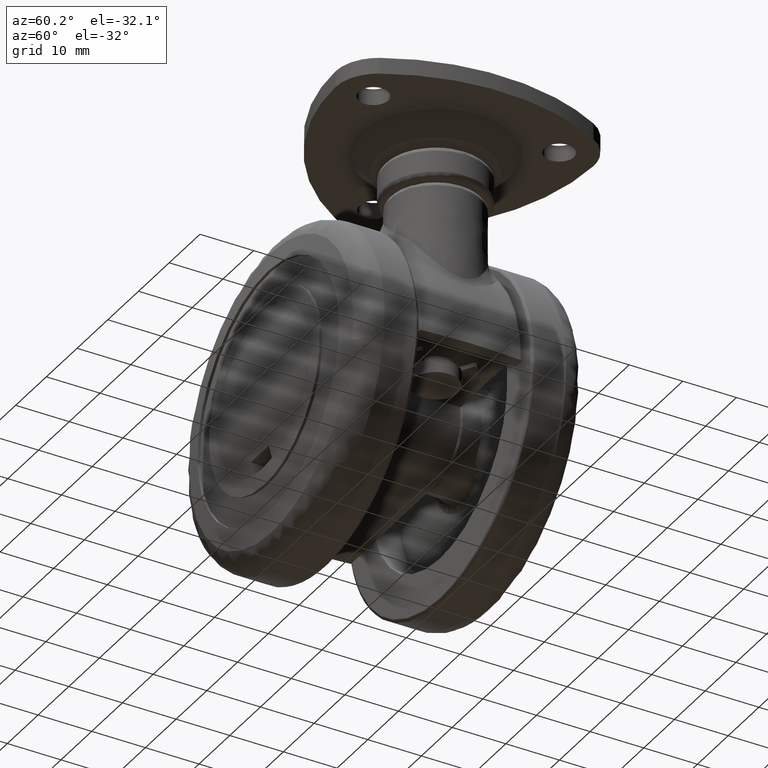
[diagram: clean part render]
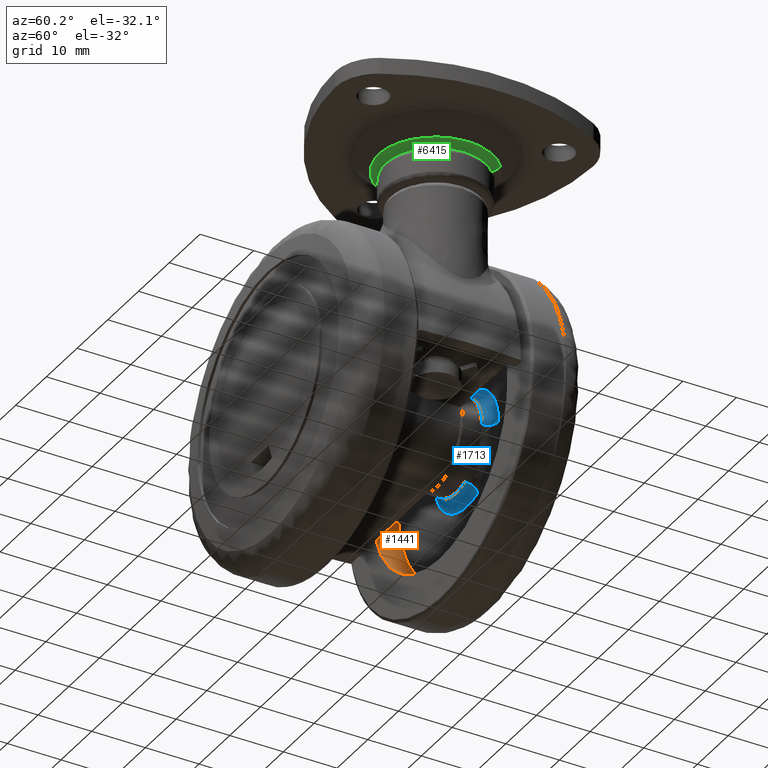
[diagram: same view with three faces highlighted in distinct colors, each labeled with its STEP entity id]
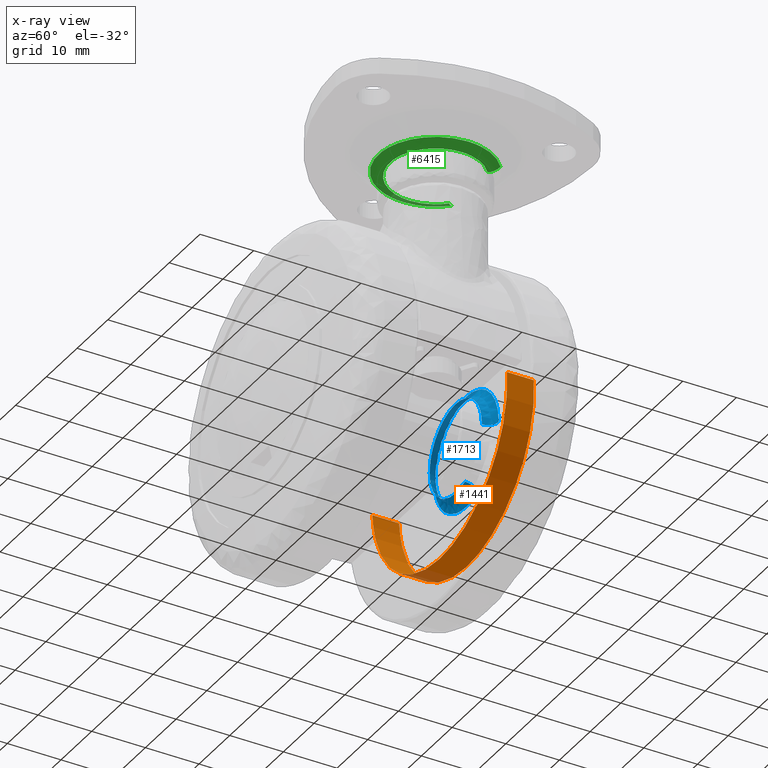
[diagram: x-ray of the same camera — body ghosted, the three highlighted faces saturated]
A machine part, auxiliary view with three faces highlighted in distinct colors.
The next image is the same camera in x-ray (body ghosted, the three faces saturated) — at least one of them is partly hidden behind the body in this view.
Their STEP definitions:

[orange] entity #1441 — the highlighted face is a freeform B-spline surface patch.
#1280=CARTESIAN_POINT('',(21.932181719847271,15.499999999999959,1.726095306631135));
#1281=VERTEX_POINT('',#1280);
#1295=CARTESIAN_POINT('',(21.932181715301869,10.500000000000000,1.726095364386155));
#1296=VERTEX_POINT('',#1295);
#1297=CARTESIAN_POINT('',(21.932181719847271,15.499999999999959,1.726095306631135));
#1298=CARTESIAN_POINT('',(21.932181715301869,10.500000000000000,1.726095364386155));
#1299=QUASI_UNIFORM_CURVE('',1,(#1297,#1298),.UNSPECIFIED.,.F.,.U.);
#1300=EDGE_CURVE('',#1281,#1296,#1299,.T.);
#1317=CARTESIAN_POINT('',(-21.932181715301869,10.500000000000000,-1.726095364386156));
#1318=VERTEX_POINT('',#1317);
#1334=CARTESIAN_POINT('',(-21.932181719847261,15.499999999999959,-1.726095306631136));
#1335=VERTEX_POINT('',#1334);
#1336=CARTESIAN_POINT('',(-21.932181719847261,15.499999999999959,-1.726095306631136));
#1337=CARTESIAN_POINT('',(-21.932181715301869,10.500000000000000,-1.726095364386156));
#1338=QUASI_UNIFORM_CURVE('',1,(#1336,#1337),.UNSPECIFIED.,.F.,.U.);
#1339=EDGE_CURVE('',#1335,#1318,#1338,.T.);
#1359=CARTESIAN_POINT('',(-21.932181342128811,15.625000000000011,-1.726100106012602));
#1360=CARTESIAN_POINT('',(-20.206081236116209,15.625000000000020,-23.658281448141402));
#1361=CARTESIAN_POINT('',(1.726100106012602,15.625000000000020,-21.932181342128811));
#1362=CARTESIAN_POINT('',(23.658281448141402,15.625000000000020,-20.206081236116209));
#1363=CARTESIAN_POINT('',(21.932181342128811,15.625000000000011,1.726100106012602));
#1364=CARTESIAN_POINT('',(-21.932181342128811,10.371874999999990,-1.726100106012604));
#1365=CARTESIAN_POINT('',(-20.206081236116209,10.371875000000001,-23.658281448141416));
#1366=CARTESIAN_POINT('',(1.726100106012602,10.371874999999999,-21.932181342128811));
#1367=CARTESIAN_POINT('',(23.658281448141402,10.371875000000001,-20.206081236116209));
#1368=CARTESIAN_POINT('',(21.932181342128811,10.371874999999990,1.726100106012600));
#1376=(BOUNDED_SURFACE()B_SPLINE_SURFACE(2,1,((#1359,#1364),(#1360,#1365),(#1361,#1366),(#1362,#1367),(#1363,#1368)),.UNSPECIFIED.,.F.,.F.,.U.)B_SPLINE_SURFACE_WITH_KNOTS((3,2,3),(2,2),(0.0,36.450793488832360,72.901586977664721),(0.0,5.253125000000019),.UNSPECIFIED.)GEOMETRIC_REPRESENTATION_ITEM()RATIONAL_B_SPLINE_SURFACE(((1.0,1.0),(0.707106781186548,0.707106781186548),(1.0,1.0),(0.707106781186548,0.707106781186548),(1.0,1.0)))REPRESENTATION_ITEM('')SURFACE());
#1377=CARTESIAN_POINT('',(0.0,15.500000000000000,-21.999999999999989));
#1378=VERTEX_POINT('',#1377);
#1379=CARTESIAN_POINT('',(21.932181719847271,15.499999999999961,1.726095306631135));
#1380=CARTESIAN_POINT('',(21.999999999999996,15.500000000000002,0.864379943341853));
#1381=CARTESIAN_POINT('',(22.0,15.500000000000000,5.694420E-015));
#1382=CARTESIAN_POINT('',(22.000000000000007,15.500000000000004,-21.999999999999989));
#1383=CARTESIAN_POINT('',(0.0,15.500000000000000,-21.999999999999989));
#1391=(BOUNDED_CURVE()B_SPLINE_CURVE(2,(#1379,#1380,#1381,#1382,#1383),.UNSPECIFIED.,.F.,.U.)B_SPLINE_CURVE_WITH_KNOTS((3,2,3),(0.236331338145294,0.250000000000000,0.500000000000000),.UNSPECIFIED.)CURVE()GEOMETRIC_REPRESENTATION_ITEM()RATIONAL_B_SPLINE_CURVE((0.969723434457610,0.983986166530010,1.0,0.707106781186548,1.0))REPRESENTATION_ITEM(''));
#1392=EDGE_CURVE('',#1281,#1378,#1391,.T.);
#1393=ORIENTED_EDGE('',*,*,#1392,.T.);
#1394=CARTESIAN_POINT('',(0.0,15.500000000000000,-21.999999999999989));
#1395=CARTESIAN_POINT('',(-20.336595280463019,15.499999999999998,-21.999999999999989));
#1396=CARTESIAN_POINT('',(-21.932181719847264,15.499999999999964,-1.726095306631136));
#1404=(BOUNDED_CURVE()B_SPLINE_CURVE(2,(#1394,#1395,#1396),.UNSPECIFIED.,.F.,.U.)B_SPLINE_CURVE_WITH_KNOTS((3,3),(0.500000000000000,0.736331338145294),.UNSPECIFIED.)CURVE()GEOMETRIC_REPRESENTATION_ITEM()RATIONAL_B_SPLINE_CURVE((1.0,0.723120614656538,0.969723434457610))REPRESENTATION_ITEM(''));
#1405=EDGE_CURVE('',#1378,#1335,#1404,.T.);
#1406=ORIENTED_EDGE('',*,*,#1405,.T.);
#1407=ORIENTED_EDGE('',*,*,#1339,.T.);
#1408=CARTESIAN_POINT('',(0.0,10.500000000000000,-22.0));
#1409=VERTEX_POINT('',#1408);
#1410=CARTESIAN_POINT('',(0.0,10.500000000000000,-22.0));
#1411=CARTESIAN_POINT('',(-20.336595226744148,10.499999999999998,-21.999999999999989));
#1412=CARTESIAN_POINT('',(-21.932181715301869,10.499999999999998,-1.726095364386157));
#1420=(BOUNDED_CURVE()B_SPLINE_CURVE(2,(#1410,#1411,#1412),.UNSPECIFIED.,.F.,.U.)B_SPLINE_CURVE_WITH_KNOTS((3,3),(0.500000000000000,0.736331337693874),.UNSPECIFIED.)CURVE()GEOMETRIC_REPRESENTATION_ITEM()RATIONAL_B_SPLINE_CURVE((1.0,0.723120615185409,0.969723433515531))REPRESENTATION_ITEM(''));
#1421=EDGE_CURVE('',#1409,#1318,#1420,.T.);
#1422=ORIENTED_EDGE('',*,*,#1421,.F.);
#1423=CARTESIAN_POINT('',(21.932181715301876,10.499999999999996,1.726095364386155));
#1424=CARTESIAN_POINT('',(22.0,10.500000000000000,0.864379972353372));
#1425=CARTESIAN_POINT('',(22.0,10.500000000000000,3.857510E-015));
#1426=CARTESIAN_POINT('',(22.000000000000007,10.500000000000002,-21.999999999999989));
#1427=CARTESIAN_POINT('',(0.0,10.500000000000000,-22.0));
#1435=(BOUNDED_CURVE()B_SPLINE_CURVE(2,(#1423,#1424,#1425,#1426,#1427),.UNSPECIFIED.,.F.,.U.)B_SPLINE_CURVE_WITH_KNOTS((3,2,3),(0.236331337693874,0.250000000000000,0.500000000000000),.UNSPECIFIED.)CURVE()GEOMETRIC_REPRESENTATION_ITEM()RATIONAL_B_SPLINE_CURVE((0.969723433515531,0.983986166001138,1.0,0.707106781186548,1.0))REPRESENTATION_ITEM(''));
#1436=EDGE_CURVE('',#1296,#1409,#1435,.T.);
#1437=ORIENTED_EDGE('',*,*,#1436,.F.);
#1438=ORIENTED_EDGE('',*,*,#1300,.F.);
#1439=EDGE_LOOP('',(#1393,#1406,#1407,#1422,#1437,#1438));
#1440=FACE_OUTER_BOUND('',#1439,.T.);
#1441=ADVANCED_FACE('',(#1440),#1376,.F.);

[blue] entity #1713 — the highlighted face is a freeform B-spline surface patch.
#1044=CARTESIAN_POINT('',(0.0,13.500000000000000,-8.499999999999995));
#1045=VERTEX_POINT('',#1044);
#1046=CARTESIAN_POINT('',(-6.155301993841409,13.500000000000030,-5.861932903455232));
#1047=VERTEX_POINT('',#1046);
#1048=CARTESIAN_POINT('',(0.0,13.500000000000000,-8.499999999999995));
#1049=CARTESIAN_POINT('',(-3.642968885092640,13.500000000000007,-8.499999999999995));
#1050=CARTESIAN_POINT('',(-6.155301993841409,13.500000000000034,-5.861932903455232));
#1058=(BOUNDED_CURVE()B_SPLINE_CURVE(2,(#1048,#1049,#1050),.UNSPECIFIED.,.F.,.U.)B_SPLINE_CURVE_WITH_KNOTS((3,3),(0.0,0.128683008523415),.UNSPECIFIED.)CURVE()GEOMETRIC_REPRESENTATION_ITEM()RATIONAL_B_SPLINE_CURVE((1.0,0.849238477707912,0.853680525480750))REPRESENTATION_ITEM(''));
#1059=EDGE_CURVE('',#1045,#1047,#1058,.T.);
#1061=CARTESIAN_POINT('',(3.003066716635998,13.500000000583579,-7.951829367851963));
#1062=VERTEX_POINT('',#1061);
#1063=CARTESIAN_POINT('',(3.003066716635998,13.500000000583572,-7.951829367851965));
#1064=CARTESIAN_POINT('',(1.551564055333215,13.500000000000004,-8.499999999999995));
#1065=CARTESIAN_POINT('',(0.0,13.500000000000000,-8.499999999999995));
#1073=(BOUNDED_CURVE()B_SPLINE_CURVE(2,(#1063,#1064,#1065),.UNSPECIFIED.,.F.,.U.)B_SPLINE_CURVE_WITH_KNOTS((3,3),(0.939999999999001,1.0),.UNSPECIFIED.)CURVE()GEOMETRIC_REPRESENTATION_ITEM()RATIONAL_B_SPLINE_CURVE((0.893152553775636,0.929705627483601,1.0))REPRESENTATION_ITEM(''));
#1074=EDGE_CURVE('',#1062,#1045,#1073,.T.);
#1076=CARTESIAN_POINT('',(8.500000000000000,13.500000000607830,5.399091E-015));
#1077=VERTEX_POINT('',#1076);
#1091=CARTESIAN_POINT('',(0.0,13.500000000000000,8.500000000000005));
#1092=VERTEX_POINT('',#1091);
#1093=CARTESIAN_POINT('',(0.0,13.500000000000000,8.500000000000005));
#1094=CARTESIAN_POINT('',(8.499999999999957,13.500000000000002,8.500000000000005));
#1095=CARTESIAN_POINT('',(8.500000000000000,13.500000000607827,5.399091E-015));
#1103=(BOUNDED_CURVE()B_SPLINE_CURVE(2,(#1093,#1094,#1095),.UNSPECIFIED.,.F.,.U.)B_SPLINE_CURVE_WITH_KNOTS((3,3),(0.500000000000000,0.749999999999999),.UNSPECIFIED.)CURVE()GEOMETRIC_REPRESENTATION_ITEM()RATIONAL_B_SPLINE_CURVE((1.0,0.707106781186549,0.999999999999998))REPRESENTATION_ITEM(''));
#1104=EDGE_CURVE('',#1092,#1077,#1103,.T.);
#1106=CARTESIAN_POINT('',(-8.499676346044968,13.500000000000000,-0.074175551792033));
#1107=VERTEX_POINT('',#1106);
#1108=CARTESIAN_POINT('',(-8.499676346044968,13.499999999999998,-0.074175551792033));
#1109=CARTESIAN_POINT('',(-8.500000000000000,13.500000000000002,-0.037088482031816));
#1110=CARTESIAN_POINT('',(-8.500000000000000,13.500000000000000,4.959656E-015));
#1111=CARTESIAN_POINT('',(-8.500000000000002,13.500000000000000,8.500000000000005));
#1112=CARTESIAN_POINT('',(0.0,13.500000000000000,8.500000000000005));
#1120=(BOUNDED_CURVE()B_SPLINE_CURVE(2,(#1108,#1109,#1110,#1111,#1112),.UNSPECIFIED.,.F.,.U.)B_SPLINE_CURVE_WITH_KNOTS((3,2,3),(0.248460105662698,0.250000000000000,0.500000000000000),.UNSPECIFIED.)CURVE()GEOMETRIC_REPRESENTATION_ITEM()RATIONAL_B_SPLINE_CURVE((0.996414028095048,0.998195901563660,1.0,0.707106781186548,1.0))REPRESENTATION_ITEM(''));
#1121=EDGE_CURVE('',#1107,#1092,#1120,.T.);
#1229=CARTESIAN_POINT('',(-6.155301993841409,13.500000000000034,-5.861932903455232));
#1230=CARTESIAN_POINT('',(-8.470381862069797,13.499999999999996,-3.430990921686147));
#1231=CARTESIAN_POINT('',(-8.499676346044968,13.500000000000002,-0.074175551792033));
#1239=(BOUNDED_CURVE()B_SPLINE_CURVE(2,(#1229,#1230,#1231),.UNSPECIFIED.,.F.,.U.)B_SPLINE_CURVE_WITH_KNOTS((3,3),(0.128683008523415,0.248460105662698),.UNSPECIFIED.)CURVE()GEOMETRIC_REPRESENTATION_ITEM()RATIONAL_B_SPLINE_CURVE((0.853680525480750,0.857815147399291,0.996414028095049))REPRESENTATION_ITEM(''));
#1240=EDGE_CURVE('',#1047,#1107,#1239,.T.);
#1596=CARTESIAN_POINT('',(3.758674162915975,15.495184676589259,-9.952604591691591));
#1597=CARTESIAN_POINT('',(1.941956099252854,15.495184676589254,-10.638701500725199));
#1598=CARTESIAN_POINT('',(1.302822E-015,15.495184676589266,-10.638701500725205));
#1599=CARTESIAN_POINT('',(-10.638701500725205,15.495184676589258,-10.638701500725205));
#1600=CARTESIAN_POINT('',(-10.638701500725210,15.495184676589254,3.738417E-015));
#1601=CARTESIAN_POINT('',(-10.638701500725210,15.495184676589252,10.638701500725210));
#1602=CARTESIAN_POINT('',(-2.605644E-015,15.495184676589254,10.638701500725213));
#1603=CARTESIAN_POINT('',(10.638701500725205,15.495184676589252,10.638701500725213));
#1604=CARTESIAN_POINT('',(10.638701500725210,15.495184676589254,8.949706E-015));
#1605=CARTESIAN_POINT('',(2.948135817403886,15.654671779828133,-7.806377675063257));
#1606=CARTESIAN_POINT('',(1.523183464137181,15.654671779828133,-8.344521388527067));
#1607=CARTESIAN_POINT('',(1.021875E-015,15.654671779828140,-8.344521388527070));
#1608=CARTESIAN_POINT('',(-8.344521388527070,15.654671779828133,-8.344521388527070));
#1609=CARTESIAN_POINT('',(-8.344521388527076,15.654671779828133,4.218430E-015));
#1610=CARTESIAN_POINT('',(-8.344521388527074,15.654671779828130,8.344521388527078));
#1611=CARTESIAN_POINT('',(-2.043751E-015,15.654671779828133,8.344521388527081));
#1612=CARTESIAN_POINT('',(8.344521388527070,15.654671779828130,8.344521388527081));
#1613=CARTESIAN_POINT('',(8.344521388527076,15.654671779828133,8.305932E-015));
#1614=CARTESIAN_POINT('',(3.004786375509846,13.360551538271976,-7.956382857818938));
#1615=CARTESIAN_POINT('',(1.552452534046289,13.360551538271976,-8.504867391243950));
#1616=CARTESIAN_POINT('',(1.041511E-015,13.360551538271983,-8.504867391243950));
#1617=CARTESIAN_POINT('',(-8.504867391243954,13.360551538271977,-8.504867391243950));
#1618=CARTESIAN_POINT('',(-8.504867391243955,13.360551538271970,3.346158E-015));
#1619=CARTESIAN_POINT('',(-8.504867391243955,13.360551538271968,8.504867391243957));
#1620=CARTESIAN_POINT('',(-2.083023E-015,13.360551538271970,8.504867391243963));
#1621=CARTESIAN_POINT('',(8.504867391243950,13.360551538271968,8.504867391243964));
#1622=CARTESIAN_POINT('',(8.504867391243955,13.360551538271970,7.512204E-015));
#1630=(BOUNDED_SURFACE()B_SPLINE_SURFACE(2,2,((#1596,#1605,#1614),(#1597,#1606,#1615),(#1598,#1607,#1616),(#1599,#1608,#1617),(#1600,#1609,#1618),(#1601,#1610,#1619),(#1602,#1611,#1620),(#1603,#1612,#1621),(#1604,#1613,#1622)),.UNSPECIFIED.,.F.,.F.,.U.)B_SPLINE_SURFACE_WITH_KNOTS((3,2,2,2,3),(3,3),(0.0,4.230426669733809,21.857204460291332,39.483982250848847,57.110760041406373),(0.0,3.644741189131477),.UNSPECIFIED.)GEOMETRIC_REPRESENTATION_ITEM()RATIONAL_B_SPLINE_SURFACE(((0.812829786868181,0.531919612532274,0.808327349069350),(0.846095578905325,0.553688902360042,0.841408874779280),(0.910068255899832,0.595552921259597,0.905027193452222),(0.643515435089385,0.421119509178119,0.639950865648296),(0.910068255899832,0.595552921259597,0.905027193452222),(0.643515435089385,0.421119509178119,0.639950865648296),(0.910068255899832,0.595552921259597,0.905027193452222),(0.643515435089385,0.421119509178119,0.639950865648296),(0.910068255899832,0.595552921259597,0.905027193452222)))REPRESENTATION_ITEM('')SURFACE());
#1631=ORIENTED_EDGE('',*,*,#1074,.T.);
#1632=ORIENTED_EDGE('',*,*,#1059,.T.);
#1633=ORIENTED_EDGE('',*,*,#1240,.T.);
#1634=ORIENTED_EDGE('',*,*,#1121,.T.);
#1635=ORIENTED_EDGE('',*,*,#1104,.T.);
#1636=CARTESIAN_POINT('',(10.499999999735190,15.500000000000000,-9.337818E-015));
#1637=VERTEX_POINT('',#1636);
#1638=CARTESIAN_POINT('',(10.499999999735191,15.499999999999996,-9.337818E-015));
#1639=CARTESIAN_POINT('',(8.500000001215661,15.499999999470388,6.026891E-015));
#1640=CARTESIAN_POINT('',(8.500000000000000,13.500000000607828,5.399091E-015));
#1648=(BOUNDED_CURVE()B_SPLINE_CURVE(2,(#1638,#1639,#1640),.UNSPECIFIED.,.F.,.U.)B_SPLINE_CURVE_WITH_KNOTS((3,3),(-1.726807299243102,-0.285995334662671),.UNSPECIFIED.)CURVE()GEOMETRIC_REPRESENTATION_ITEM()RATIONAL_B_SPLINE_CURVE((0.882788776121343,0.622603437898806,0.878205638835322))REPRESENTATION_ITEM(''));
#1649=EDGE_CURVE('',#1637,#1077,#1648,.T.);
#1650=ORIENTED_EDGE('',*,*,#1649,.F.);
#1651=CARTESIAN_POINT('',(0.0,15.500000000000000,10.500000000000011));
#1652=VERTEX_POINT('',#1651);
#1653=CARTESIAN_POINT('',(10.499999999735197,15.500000000000002,-9.337818E-015));
#1654=CARTESIAN_POINT('',(10.500000000000030,15.500000000000004,10.500000000000005));
#1655=CARTESIAN_POINT('',(0.0,15.500000000000000,10.500000000000011));
#1663=(BOUNDED_CURVE()B_SPLINE_CURVE(2,(#1653,#1654,#1655),.UNSPECIFIED.,.F.,.U.)B_SPLINE_CURVE_WITH_KNOTS((3,3),(0.250000000000000,0.500000000000000),.UNSPECIFIED.)CURVE()GEOMETRIC_REPRESENTATION_ITEM()RATIONAL_B_SPLINE_CURVE((1.000000000000001,0.707106781186547,1.0))REPRESENTATION_ITEM(''));
#1664=EDGE_CURVE('',#1637,#1652,#1663,.T.);
#1665=ORIENTED_EDGE('',*,*,#1664,.T.);
#1666=CARTESIAN_POINT('',(0.0,15.500000000000000,-10.500000000000000));
#1667=VERTEX_POINT('',#1666);
#1668=CARTESIAN_POINT('',(0.0,15.500000000000000,10.500000000000011));
#1669=CARTESIAN_POINT('',(-10.500000000000000,15.500000000000005,10.500000000000005));
#1670=CARTESIAN_POINT('',(-10.500000000000000,15.500000000000000,5.694420E-015));
#1671=CARTESIAN_POINT('',(-10.500000000000000,15.500000000000005,-10.499999999999995));
#1672=CARTESIAN_POINT('',(0.0,15.500000000000000,-10.500000000000000));
#1680=(BOUNDED_CURVE()B_SPLINE_CURVE(2,(#1668,#1669,#1670,#1671,#1672),.UNSPECIFIED.,.F.,.U.)B_SPLINE_CURVE_WITH_KNOTS((3,2,3),(0.500000000000000,0.750000000000000,1.0),.UNSPECIFIED.)CURVE()GEOMETRIC_REPRESENTATION_ITEM()RATIONAL_B_SPLINE_CURVE((1.0,0.707106781186547,1.0,0.707106781186547,1.0))REPRESENTATION_ITEM(''));
#1681=EDGE_CURVE('',#1652,#1667,#1680,.T.);
#1682=ORIENTED_EDGE('',*,*,#1681,.T.);
#1683=CARTESIAN_POINT('',(3.709670649918436,15.500000000000000,-9.822848042568422));
#1684=VERTEX_POINT('',#1683);
#1685=CARTESIAN_POINT('',(0.0,15.500000000000000,-10.500000000000000));
#1686=CARTESIAN_POINT('',(1.916637950689885,15.500000000000004,-10.499999999999995));
#1687=CARTESIAN_POINT('',(3.709670649918436,15.500000000000007,-9.822848042568422));
#1695=(BOUNDED_CURVE()B_SPLINE_CURVE(2,(#1685,#1686,#1687),.UNSPECIFIED.,.F.,.U.)B_SPLINE_CURVE_WITH_KNOTS((3,3),(0.0,0.060000000000537),.UNSPECIFIED.)CURVE()GEOMETRIC_REPRESENTATION_ITEM()RATIONAL_B_SPLINE_CURVE((1.0,0.929705627484142,0.893152553776198))REPRESENTATION_ITEM(''));
#1696=EDGE_CURVE('',#1667,#1684,#1695,.T.);
#1697=ORIENTED_EDGE('',*,*,#1696,.T.);
#1698=CARTESIAN_POINT('',(3.709670649918435,15.500000000000004,-9.822848042568422));
#1699=CARTESIAN_POINT('',(3.003066717023208,15.499999999833975,-7.951829368953341));
#1700=CARTESIAN_POINT('',(3.003066716635997,13.500000000583581,-7.951829367851963));
#1708=(BOUNDED_CURVE()B_SPLINE_CURVE(2,(#1698,#1699,#1700),.UNSPECIFIED.,.F.,.U.)B_SPLINE_CURVE_WITH_KNOTS((3,3),(-1.726807299428795,-0.285995334638024),.UNSPECIFIED.)CURVE()GEOMETRIC_REPRESENTATION_ITEM()RATIONAL_B_SPLINE_CURVE((0.788465049898219,0.556079850516169,0.784371609074811))REPRESENTATION_ITEM(''));
#1709=EDGE_CURVE('',#1684,#1062,#1708,.T.);
#1710=ORIENTED_EDGE('',*,*,#1709,.T.);
#1711=EDGE_LOOP('',(#1631,#1632,#1633,#1634,#1635,#1650,#1665,#1682,#1697,#1710));
#1712=FACE_OUTER_BOUND('',#1711,.T.);
#1713=ADVANCED_FACE('',(#1712),#1630,.F.);

[green] entity #6415 — the highlighted face is a freeform B-spline surface patch.
#4781=CARTESIAN_POINT('',(17.833916570248451,-10.595914672294880,39.378679656462722));
#4782=VERTEX_POINT('',#4781);
#4783=CARTESIAN_POINT('',(7.116769249241264,-3.910316421418289,39.378679656447090));
#4784=VERTEX_POINT('',#4783);
#4785=CARTESIAN_POINT('',(17.833916570248448,-10.595914672294880,39.378679656462722));
#4786=CARTESIAN_POINT('',(17.417601948929232,-10.628679343559739,39.378679656440355));
#4787=CARTESIAN_POINT('',(17.0,-10.628679343559741,39.378679656440362));
#4788=CARTESIAN_POINT('',(9.774900534710502,-10.628679343559742,39.378679656440355));
#4789=CARTESIAN_POINT('',(7.116769249241264,-3.910316421418289,39.378679656447090));
#4797=(BOUNDED_CURVE()B_SPLINE_CURVE(2,(#4785,#4786,#4787,#4788,#4789),.UNSPECIFIED.,.F.,.U.)B_SPLINE_CURVE_WITH_KNOTS((3,2,3),(0.736331300627274,0.750000000000000,0.937532549937273),.UNSPECIFIED.)CURVE()GEOMETRIC_REPRESENTATION_ITEM()RATIONAL_B_SPLINE_CURVE((0.969723356160351,0.983986122574915,1.0,0.780291951266311,0.890203187498792))REPRESENTATION_ITEM(''));
#4798=EDGE_CURVE('',#4782,#4784,#4797,.T.);
#4858=CARTESIAN_POINT('',(6.371320656440261,0.0,39.378679656440362));
#4859=VERTEX_POINT('',#4858);
#4860=CARTESIAN_POINT('',(7.116769249241264,-3.910316421418289,39.378679656447098));
#4861=CARTESIAN_POINT('',(6.371320656440262,-2.026213023788299,39.378679656440355));
#4862=CARTESIAN_POINT('',(6.371320656440261,0.0,39.378679656440362));
#4870=(BOUNDED_CURVE()B_SPLINE_CURVE(2,(#4860,#4861,#4862),.UNSPECIFIED.,.F.,.U.)B_SPLINE_CURVE_WITH_KNOTS((3,3),(0.937532549937274,1.0),.UNSPECIFIED.)CURVE()GEOMETRIC_REPRESENTATION_ITEM()RATIONAL_B_SPLINE_CURVE((0.890203187498793,0.926814829920238,1.0))REPRESENTATION_ITEM(''));
#4871=EDGE_CURVE('',#4784,#4859,#4870,.T.);
#4950=CARTESIAN_POINT('',(27.628679343559739,0.0,39.378679656440362));
#4951=VERTEX_POINT('',#4950);
#4952=CARTESIAN_POINT('',(27.628679343559739,0.0,39.378679656440362));
#4953=CARTESIAN_POINT('',(27.628679343559742,-9.825050123754750,39.378679656440355));
#4954=CARTESIAN_POINT('',(17.833916570248441,-10.595914672294889,39.378679656462722));
#4962=(BOUNDED_CURVE()B_SPLINE_CURVE(2,(#4952,#4953,#4954),.UNSPECIFIED.,.F.,.U.)B_SPLINE_CURVE_WITH_KNOTS((3,3),(0.500000000000000,0.736331300627273),.UNSPECIFIED.)CURVE()GEOMETRIC_REPRESENTATION_ITEM()RATIONAL_B_SPLINE_CURVE((1.0,0.723120658611634,0.969723356160350))REPRESENTATION_ITEM(''));
#4963=EDGE_CURVE('',#4951,#4782,#4962,.T.);
#4965=CARTESIAN_POINT('',(23.545071381077118,8.374417305348279,39.378679656407392));
#4966=VERTEX_POINT('',#4965);
#4967=CARTESIAN_POINT('',(23.545071381077118,8.374417305348279,39.378679656407385));
#4968=CARTESIAN_POINT('',(27.628679343559746,5.182851297603894,39.378679656440355));
#4969=CARTESIAN_POINT('',(27.628679343559739,0.0,39.378679656440362));
#4977=(BOUNDED_CURVE()B_SPLINE_CURVE(2,(#4967,#4968,#4969),.UNSPECIFIED.,.F.,.U.)B_SPLINE_CURVE_WITH_KNOTS((3,3),(0.356567917884935,0.500000000000000),.UNSPECIFIED.)CURVE()GEOMETRIC_REPRESENTATION_ITEM()RATIONAL_B_SPLINE_CURVE((0.856737647417422,0.831958863152813,1.0))REPRESENTATION_ITEM(''));
#4978=EDGE_CURVE('',#4966,#4951,#4977,.T.);
#4980=CARTESIAN_POINT('',(9.437315445451546,7.468241219744032,39.378679656425170));
#4981=VERTEX_POINT('',#4980);
#4997=CARTESIAN_POINT('',(6.371320656440261,0.0,39.378679656440362));
#4998=CARTESIAN_POINT('',(6.371320656440261,4.363473878577548,39.378679656440355));
#4999=CARTESIAN_POINT('',(9.437315445451544,7.468241219744032,39.378679656425170));
#5007=(BOUNDED_CURVE()B_SPLINE_CURVE(2,(#4997,#4998,#4999),.UNSPECIFIED.,.F.,.U.)B_SPLINE_CURVE_WITH_KNOTS((3,3),(0.0,0.124051937432062),.UNSPECIFIED.)CURVE()GEOMETRIC_REPRESENTATION_ITEM()RATIONAL_B_SPLINE_CURVE((1.0,0.854664114981914,0.853561814883003))REPRESENTATION_ITEM(''));
#5008=EDGE_CURVE('',#4859,#4981,#5007,.T.);
#6283=CARTESIAN_POINT('',(23.593941502335138,8.436944653354424,39.461125934116730));
#6284=CARTESIAN_POINT('',(24.082658039173843,8.054985497813794,39.461125934116723));
#6285=CARTESIAN_POINT('',(24.524003292897010,7.619151794554202,39.461125934116730));
#6286=CARTESIAN_POINT('',(32.143155087451213,0.095148501657200,39.461125934116737));
#6287=CARTESIAN_POINT('',(24.619151794554202,-7.524003292897003,39.461125934116730));
#6288=CARTESIAN_POINT('',(17.095148501657206,-15.143155087451204,39.461125934116737));
#6289=CARTESIAN_POINT('',(9.475996707102999,-7.619151794554203,39.461125934116730));
#6290=CARTESIAN_POINT('',(1.856844912548795,-0.095148501657202,39.461125934116737));
#6291=CARTESIAN_POINT('',(9.380848205445798,7.524003292897003,39.461125934116730));
#6292=CARTESIAN_POINT('',(23.015418211102038,7.696724409198247,38.447092670086136));
#6293=CARTESIAN_POINT('',(23.461256918455636,7.348276662228918,38.447092670086150));
#6294=CARTESIAN_POINT('',(23.863880489758106,6.950681082305839,38.447092670086157));
#6295=CARTESIAN_POINT('',(30.814561572063941,0.086800592547735,38.447092670086143));
#6296=CARTESIAN_POINT('',(23.950681082305849,-6.863880489758103,38.447092670086157));
#6297=CARTESIAN_POINT('',(17.086800592547743,-13.814561572063941,38.447092670086143));
#6298=CARTESIAN_POINT('',(10.136119510241898,-6.950681082305839,38.447092670086157));
#6299=CARTESIAN_POINT('',(3.185438427936060,-0.086800592547737,38.447092670086143));
#6300=CARTESIAN_POINT('',(10.049318917694162,6.863880489758103,38.447092670086157));
#6301=CARTESIAN_POINT('',(22.164860496909132,6.608436265212144,38.502402338359495));
#6302=CARTESIAN_POINT('',(22.547659272787048,6.309257730918819,38.502402338359502));
#6303=CARTESIAN_POINT('',(22.893353371778648,5.967880684066049,38.502402338359488));
#6304=CARTESIAN_POINT('',(28.861234055844701,0.074527312287398,38.502402338359502));
#6305=CARTESIAN_POINT('',(22.967880684066056,-5.893353371778651,38.502402338359488));
#6306=CARTESIAN_POINT('',(17.074527312287394,-11.861234055844699,38.502402338359502));
#6307=CARTESIAN_POINT('',(11.106646628221347,-5.967880684066049,38.502402338359488));
#6308=CARTESIAN_POINT('',(5.138765944155302,-0.074527312287399,38.502402338359502));
#6309=CARTESIAN_POINT('',(11.032119315933949,5.893353371778651,38.502402338359488));
#6317=(BOUNDED_SURFACE()B_SPLINE_SURFACE(2,2,((#6283,#6292,#6301),(#6284,#6293,#6302),(#6285,#6294,#6303),(#6286,#6295,#6304),(#6287,#6296,#6305),(#6288,#6297,#6306),(#6289,#6298,#6307),(#6290,#6299,#6308),(#6291,#6300,#6309)),.UNSPECIFIED.,.F.,.F.,.U.)B_SPLINE_SURFACE_WITH_KNOTS((3,2,2,2,3),(3,3),(0.0,1.419331442530583,19.160991393928299,36.902651345326007,54.644311296723728),(0.0,2.631717764035816),.UNSPECIFIED.)GEOMETRIC_REPRESENTATION_ITEM()RATIONAL_B_SPLINE_SURFACE(((0.891259297210252,0.809068941303353,0.890398055927274),(0.909591812530708,0.825710864487970,0.908712856179776),(0.931416231566796,0.845522674204130,0.930516185853083),(0.658610733448101,0.597874816576724,0.657974305020557),(0.931416231566796,0.845522674204130,0.930516185853083),(0.658610733448101,0.597874816576724,0.657974305020557),(0.931416231566796,0.845522674204130,0.930516185853083),(0.658610733448101,0.597874816576724,0.657974305020557),(0.931416231566796,0.845522674204130,0.930516185853083)))REPRESENTATION_ITEM('')SURFACE());
#6318=CARTESIAN_POINT('',(22.235377441236881,6.698664214702273,38.500001692332923));
#6319=VERTEX_POINT('',#6318);
#6320=CARTESIAN_POINT('',(25.501839750482290,4.426125E-016,38.499998307657641));
#6321=VERTEX_POINT('',#6320);
#6322=CARTESIAN_POINT('',(22.235377441236878,6.698664214702272,38.500001692332908));
#6323=CARTESIAN_POINT('',(25.501839751071113,4.145742831426862,38.499999999995282));
#6324=CARTESIAN_POINT('',(25.501839750482290,4.426125E-016,38.499998307657641));
#6332=(BOUNDED_CURVE()B_SPLINE_CURVE(2,(#6322,#6323,#6324),.UNSPECIFIED.,.F.,.U.)B_SPLINE_CURVE_WITH_KNOTS((3,3),(0.356567917886374,0.500000000000000),.UNSPECIFIED.)CURVE()GEOMETRIC_REPRESENTATION_ITEM()RATIONAL_B_SPLINE_CURVE((0.856737647416925,0.831958863154498,1.0))REPRESENTATION_ITEM(''));
#6333=EDGE_CURVE('',#6319,#6321,#6332,.T.);
#6334=ORIENTED_EDGE('',*,*,#6333,.F.);
#6335=CARTESIAN_POINT('',(23.545071381077122,8.374417305348279,39.378679656407385));
#6336=CARTESIAN_POINT('',(23.002577850502984,7.680296959460184,38.497711290633703));
#6337=CARTESIAN_POINT('',(22.235377441236885,6.698664214702272,38.500001692332916));
#6345=(BOUNDED_CURVE()B_SPLINE_CURVE(2,(#6335,#6336,#6337),.UNSPECIFIED.,.F.,.U.)B_SPLINE_CURVE_WITH_KNOTS((3,3),(-1.565382962089925,-0.441129573158905),.UNSPECIFIED.)CURVE()GEOMETRIC_REPRESENTATION_ITEM()RATIONAL_B_SPLINE_CURVE((0.884131369776137,0.816157669015528,0.883348394073154))REPRESENTATION_ITEM(''));
#6346=EDGE_CURVE('',#4966,#6319,#6345,.T.);
#6347=ORIENTED_EDGE('',*,*,#6346,.F.);
#6348=ORIENTED_EDGE('',*,*,#4978,.T.);
#6349=ORIENTED_EDGE('',*,*,#4963,.T.);
#6350=ORIENTED_EDGE('',*,*,#4798,.T.);
#6351=ORIENTED_EDGE('',*,*,#4871,.T.);
#6352=ORIENTED_EDGE('',*,*,#5008,.T.);
#6353=CARTESIAN_POINT('',(10.950637692066479,5.973817447409669,38.500001692331402));
#6354=VERTEX_POINT('',#6353);
#6355=CARTESIAN_POINT('',(9.437315445451546,7.468241219744032,39.378679656425163));
#6356=CARTESIAN_POINT('',(10.064154666041162,6.849230011273994,38.497711290967970));
#6357=CARTESIAN_POINT('',(10.950637692066483,5.973817447409669,38.500001692331402));
#6365=(BOUNDED_CURVE()B_SPLINE_CURVE(2,(#6355,#6356,#6357),.UNSPECIFIED.,.F.,.U.)B_SPLINE_CURVE_WITH_KNOTS((3,3),(-1.565382962114514,-0.441129573563219),.UNSPECIFIED.)CURVE()GEOMETRIC_REPRESENTATION_ITEM()RATIONAL_B_SPLINE_CURVE((0.923967181644229,0.852930827946116,0.923148927789983))REPRESENTATION_ITEM(''));
#6366=EDGE_CURVE('',#4981,#6354,#6365,.T.);
#6367=ORIENTED_EDGE('',*,*,#6366,.T.);
#6368=CARTESIAN_POINT('',(8.498160253113392,0.0,38.499998307664249));
#6369=VERTEX_POINT('',#6368);
#6370=CARTESIAN_POINT('',(8.498160253113392,0.0,38.499998307664249));
#6371=CARTESIAN_POINT('',(8.498160250061106,3.490325983902009,38.499999999997826));
#6372=CARTESIAN_POINT('',(10.950637692066481,5.973817447409669,38.500001692331402));
#6380=(BOUNDED_CURVE()B_SPLINE_CURVE(2,(#6370,#6371,#6372),.UNSPECIFIED.,.F.,.U.)B_SPLINE_CURVE_WITH_KNOTS((3,3),(0.0,0.124051937431949),.UNSPECIFIED.)CURVE()GEOMETRIC_REPRESENTATION_ITEM()RATIONAL_B_SPLINE_CURVE((1.0,0.854664114982046,0.853561814883005))REPRESENTATION_ITEM(''));
#6381=EDGE_CURVE('',#6369,#6354,#6380,.T.);
#6382=ORIENTED_EDGE('',*,*,#6381,.F.);
#6383=CARTESIAN_POINT('',(17.981658375433749,-8.444976380179741,38.499998307648440));
#6384=VERTEX_POINT('',#6383);
#6385=CARTESIAN_POINT('',(17.981658375433753,-8.444976380179741,38.499998307648440));
#6386=CARTESIAN_POINT('',(17.492476116402788,-8.501839746886608,38.499998307664249));
#6387=CARTESIAN_POINT('',(17.0,-8.501839746886608,38.499998307664249));
#6388=CARTESIAN_POINT('',(8.498160253113392,-8.501839746886608,38.499998307664242));
#6389=CARTESIAN_POINT('',(8.498160253113392,0.0,38.499998307664249));
#6397=(BOUNDED_CURVE()B_SPLINE_CURVE(2,(#6385,#6386,#6387,#6388,#6389),.UNSPECIFIED.,.F.,.U.)B_SPLINE_CURVE_WITH_KNOTS((3,2,3),(0.729999999991786,0.750000000000000,1.0),.UNSPECIFIED.)CURVE()GEOMETRIC_REPRESENTATION_ITEM()RATIONAL_B_SPLINE_CURVE((0.956886118174493,0.976568542485301,1.0,0.707106781186547,1.0))REPRESENTATION_ITEM(''));
#6398=EDGE_CURVE('',#6384,#6369,#6397,.T.);
#6399=ORIENTED_EDGE('',*,*,#6398,.F.);
#6400=CARTESIAN_POINT('',(25.501839750482290,4.426125E-016,38.499998307657641));
#6401=CARTESIAN_POINT('',(25.501839746886613,-7.570817735993046,38.499998307664256));
#6402=CARTESIAN_POINT('',(17.981658375433756,-8.444976380179741,38.499998307648440));
#6410=(BOUNDED_CURVE()B_SPLINE_CURVE(2,(#6400,#6401,#6402),.UNSPECIFIED.,.F.,.U.)B_SPLINE_CURVE_WITH_KNOTS((3,3),(0.500000000000000,0.729999999991786),.UNSPECIFIED.)CURVE()GEOMETRIC_REPRESENTATION_ITEM()RATIONAL_B_SPLINE_CURVE((1.0,0.730538238701247,0.956886118174492))REPRESENTATION_ITEM(''));
#6411=EDGE_CURVE('',#6321,#6384,#6410,.T.);
#6412=ORIENTED_EDGE('',*,*,#6411,.F.);
#6413=EDGE_LOOP('',(#6334,#6347,#6348,#6349,#6350,#6351,#6352,#6367,#6382,#6399,#6412));
#6414=FACE_OUTER_BOUND('',#6413,.T.);
#6415=ADVANCED_FACE('',(#6414),#6317,.T.);